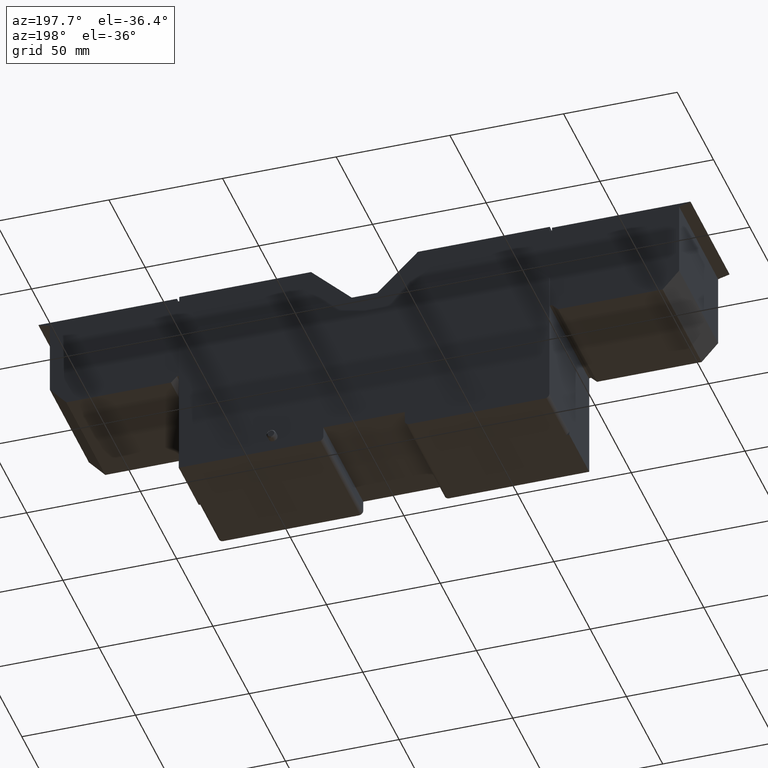
[diagram: clean part render]
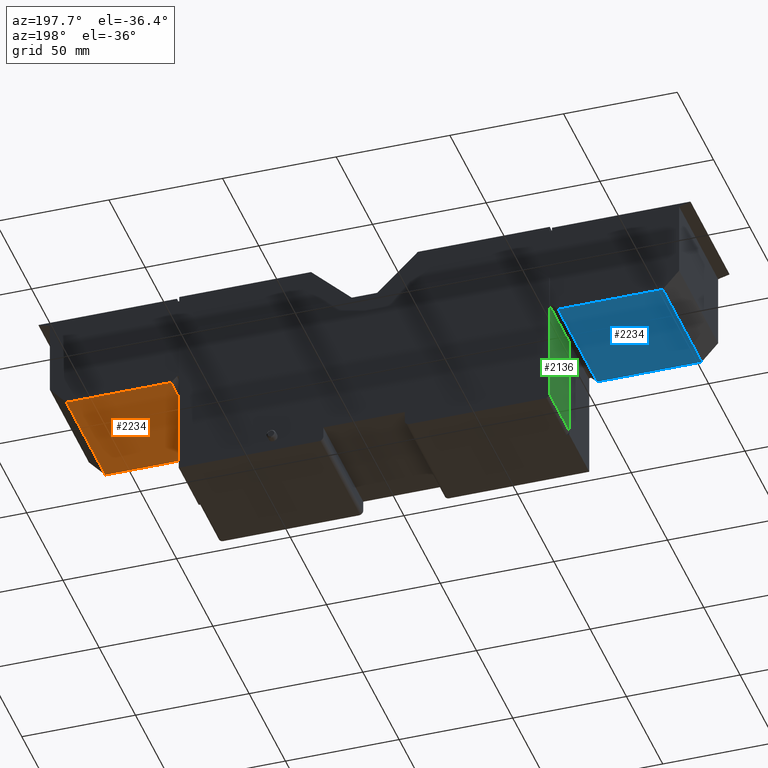
[diagram: same view with three faces highlighted in distinct colors, each labeled with its STEP entity id]
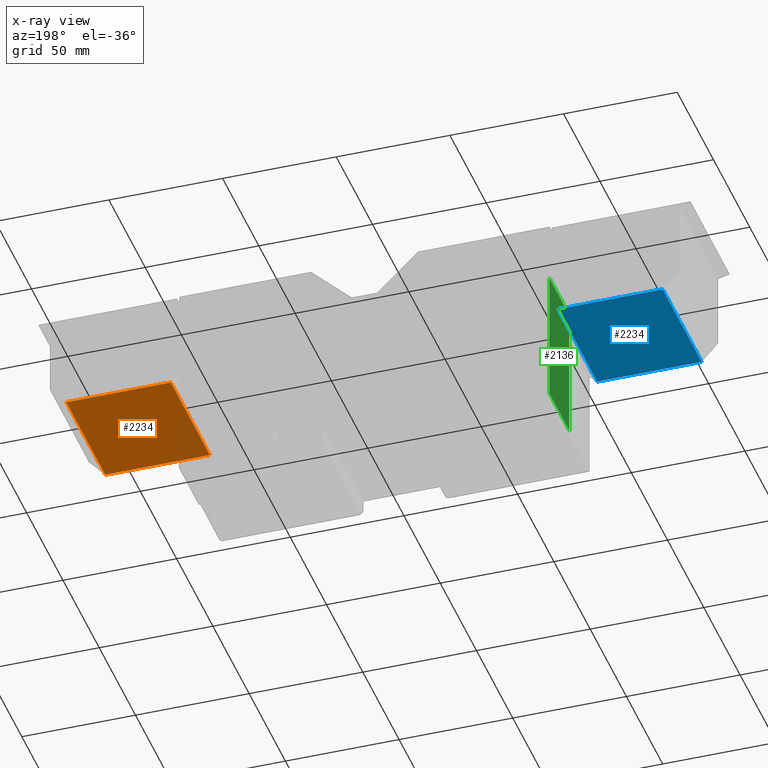
[diagram: x-ray of the same camera — body ghosted, the three highlighted faces saturated]
A machine part, auxiliary view with three faces highlighted in distinct colors.
The next image is the same camera in x-ray (body ghosted, the three faces saturated) — at least one of them is partly hidden behind the body in this view.
Their STEP definitions:

[orange] entity #2234 — the highlighted planar face has unit normal (0, 0, -1).
#629=ORIENTED_EDGE('',*,*,#970,.F.);
#630=ORIENTED_EDGE('',*,*,#969,.F.);
#631=ORIENTED_EDGE('',*,*,#971,.T.);
#632=ORIENTED_EDGE('',*,*,#972,.T.);
#969=EDGE_CURVE('',#1184,#1183,#1411,.T.);
#970=EDGE_CURVE('',#1183,#1185,#1412,.T.);
#971=EDGE_CURVE('',#1184,#1186,#1413,.T.);
#972=EDGE_CURVE('',#1186,#1185,#1414,.T.);
#1183=VERTEX_POINT('',#3651);
#1184=VERTEX_POINT('',#3653);
#1185=VERTEX_POINT('',#3657);
#1186=VERTEX_POINT('',#3659);
#1411=LINE('',#3654,#1647);
#1412=LINE('',#3656,#1648);
#1413=LINE('',#3658,#1649);
#1414=LINE('',#3660,#1650);
#1647=VECTOR('',#3025,1000.);
#1648=VECTOR('',#3028,1000.);
#1649=VECTOR('',#3029,1000.);
#1650=VECTOR('',#3030,1000.);
#1833=EDGE_LOOP('',(#629,#630,#631,#632));
#2005=FACE_BOUND('',#1833,.T.);
#2104=PLANE('',#2447);
#2234=ADVANCED_FACE('',(#2005),#2104,.T.);
#2447=AXIS2_PLACEMENT_3D('',#3655,#3026,#3027);
#3025=DIRECTION('',(0.,-1.,0.));
#3026=DIRECTION('',(0.,0.,-1.));
#3027=DIRECTION('',(-1.,0.,0.));
#3028=DIRECTION('',(1.,0.,0.));
#3029=DIRECTION('',(1.,0.,0.));
#3030=DIRECTION('',(0.,-1.,0.));
#3651=CARTESIAN_POINT('',(85.1650000000001,0.6,13.4099999999996));
#3653=CARTESIAN_POINT('',(85.1650000000001,54.4,13.4099999999996));
#3654=CARTESIAN_POINT('',(85.1650000000001,54.4,13.4099999999996));
#3655=CARTESIAN_POINT('',(85.1650000000001,54.4,13.4099999999996));
#3656=CARTESIAN_POINT('',(85.1650000000001,0.6,13.4099999999996));
#3657=CARTESIAN_POINT('',(131.165,0.6,13.4099999999996));
#3658=CARTESIAN_POINT('',(85.1650000000001,54.4,13.4099999999996));
#3659=CARTESIAN_POINT('',(131.165,54.4,13.4099999999996));
#3660=CARTESIAN_POINT('',(131.165,54.4,13.4099999999996));

[blue] entity #2234 — the highlighted planar face has unit normal (0, -0, -1).
#629=ORIENTED_EDGE('',*,*,#970,.F.);
#630=ORIENTED_EDGE('',*,*,#969,.F.);
#631=ORIENTED_EDGE('',*,*,#971,.T.);
#632=ORIENTED_EDGE('',*,*,#972,.T.);
#969=EDGE_CURVE('',#1184,#1183,#1411,.T.);
#970=EDGE_CURVE('',#1183,#1185,#1412,.T.);
#971=EDGE_CURVE('',#1184,#1186,#1413,.T.);
#972=EDGE_CURVE('',#1186,#1185,#1414,.T.);
#1183=VERTEX_POINT('',#3651);
#1184=VERTEX_POINT('',#3653);
#1185=VERTEX_POINT('',#3657);
#1186=VERTEX_POINT('',#3659);
#1411=LINE('',#3654,#1647);
#1412=LINE('',#3656,#1648);
#1413=LINE('',#3658,#1649);
#1414=LINE('',#3660,#1650);
#1647=VECTOR('',#3025,1000.);
#1648=VECTOR('',#3028,1000.);
#1649=VECTOR('',#3029,1000.);
#1650=VECTOR('',#3030,1000.);
#1833=EDGE_LOOP('',(#629,#630,#631,#632));
#2005=FACE_BOUND('',#1833,.T.);
#2104=PLANE('',#2447);
#2234=ADVANCED_FACE('',(#2005),#2104,.T.);
#2447=AXIS2_PLACEMENT_3D('',#3655,#3026,#3027);
#3025=DIRECTION('',(0.,-1.,0.));
#3026=DIRECTION('',(0.,0.,-1.));
#3027=DIRECTION('',(-1.,0.,0.));
#3028=DIRECTION('',(1.,0.,0.));
#3029=DIRECTION('',(1.,0.,0.));
#3030=DIRECTION('',(0.,-1.,0.));
#3651=CARTESIAN_POINT('',(85.1650000000001,0.6,13.4099999999996));
#3653=CARTESIAN_POINT('',(85.1650000000001,54.4,13.4099999999996));
#3654=CARTESIAN_POINT('',(85.1650000000001,54.4,13.4099999999996));
#3655=CARTESIAN_POINT('',(85.1650000000001,54.4,13.4099999999996));
#3656=CARTESIAN_POINT('',(85.1650000000001,0.6,13.4099999999996));
#3657=CARTESIAN_POINT('',(131.165,0.6,13.4099999999996));
#3658=CARTESIAN_POINT('',(85.1650000000001,54.4,13.4099999999996));
#3659=CARTESIAN_POINT('',(131.165,54.4,13.4099999999996));
#3660=CARTESIAN_POINT('',(131.165,54.4,13.4099999999996));

[green] entity #2136 — the highlighted planar face has unit normal (1, 0, -0).
#260=ORIENTED_EDGE('',*,*,#802,.T.);
#261=ORIENTED_EDGE('',*,*,#803,.T.);
#262=ORIENTED_EDGE('',*,*,#738,.F.);
#263=ORIENTED_EDGE('',*,*,#758,.T.);
#738=EDGE_CURVE('',#1020,#1017,#1222,.T.);
#758=EDGE_CURVE('',#1020,#1039,#1240,.T.);
#802=EDGE_CURVE('',#1039,#1077,#1278,.T.);
#803=EDGE_CURVE('',#1077,#1017,#1279,.T.);
#1017=VERTEX_POINT('',#3148);
#1020=VERTEX_POINT('',#3153);
#1039=VERTEX_POINT('',#3193);
#1077=VERTEX_POINT('',#3281);
#1222=LINE('',#3154,#1458);
#1240=LINE('',#3194,#1476);
#1278=LINE('',#3280,#1514);
#1279=LINE('',#3282,#1515);
#1458=VECTOR('',#2542,1000.);
#1476=VECTOR('',#2566,1000.);
#1514=VECTOR('',#2626,1000.);
#1515=VECTOR('',#2627,1000.);
#1710=EDGE_LOOP('',(#260,#261,#262,#263));
#1882=FACE_BOUND('',#1710,.T.);
#2030=PLANE('',#2313);
#2136=ADVANCED_FACE('',(#1882),#2030,.F.);
#2313=AXIS2_PLACEMENT_3D('',#3279,#2624,#2625);
#2542=DIRECTION('',(0.,-1.,0.));
#2566=DIRECTION('',(-1.98254111540207E-15,0.,1.));
#2624=DIRECTION('',(-1.,0.,-2.298408050317E-15));
#2625=DIRECTION('',(-2.298408050317E-15,0.,1.));
#2626=DIRECTION('',(0.,-1.,0.));
#2627=DIRECTION('',(2.298408050317E-15,0.,-1.));
#3148=CARTESIAN_POINT('',(81.5000000000002,0.,-30.1900000000008));
#3153=CARTESIAN_POINT('',(81.5000000000002,27.5,-30.1900000000008));
#3154=CARTESIAN_POINT('',(81.5000000000002,3.9,-30.1900000000008));
#3193=CARTESIAN_POINT('',(81.5,27.5,30.1900000000009));
#3194=CARTESIAN_POINT('',(81.5000000000001,27.5,-23.1900000000008));
#3279=CARTESIAN_POINT('',(81.5,3.9,30.1900000000009));
#3280=CARTESIAN_POINT('',(81.5,3.9,30.1900000000009));
#3281=CARTESIAN_POINT('',(81.5,0.,30.1900000000009));
#3282=CARTESIAN_POINT('',(81.5,0.,30.1900000000009));